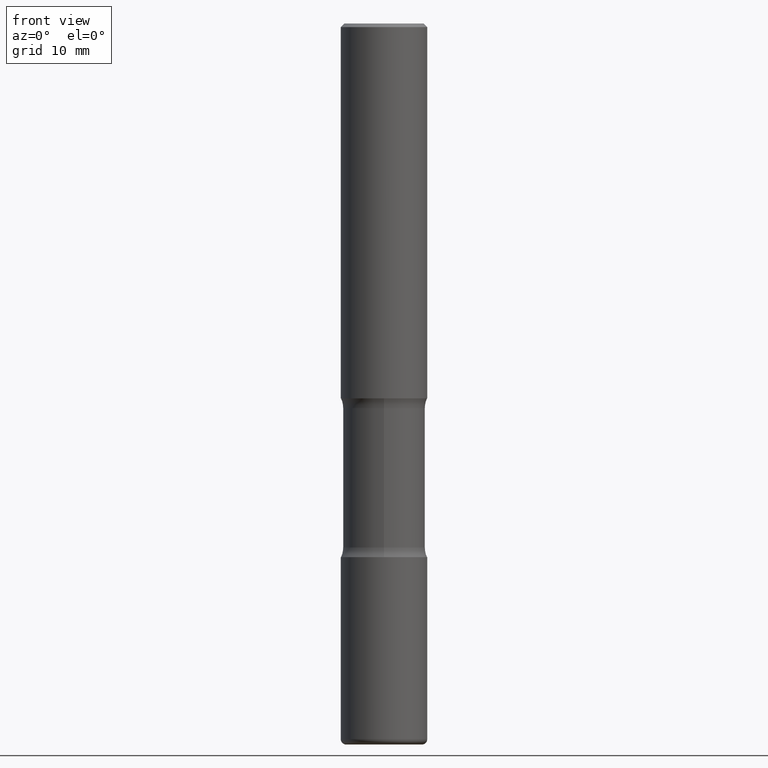
[diagram: clean part render]
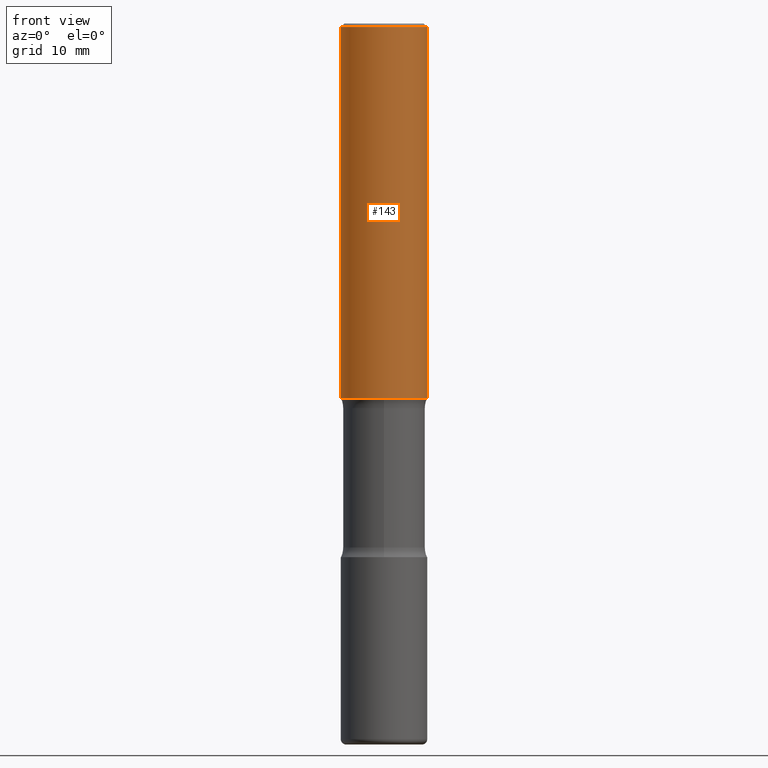
[diagram: same view with one face highlighted and labeled with its STEP entity id]
A machine part, front view. The second image highlights one B-rep face of the part: STEP entity #143.
In plain terms, the highlighted cylindrical surface (partial cylindrical patch) has radius 5.9995 mm, axis along (-0, 0, 1).
Its self-contained STEP definition (entity closure, byte-faithful):
#23 = CYLINDRICAL_SURFACE ( 'NONE', #133, 0.2361999999999999933 ) ;
#34 = DIRECTION ( 'NONE',  ( -2.445468806185136597E-29, 3.491481338843145583E-15, 1.000000000000000000 ) ) ;
#44 = EDGE_CURVE ( 'NONE', #64, #450, #71, .T. ) ;
#64 = VERTEX_POINT ( 'NONE', #393 ) ;
#71 = CIRCLE ( 'NONE', #401, 0.2362000000000001321 ) ;
#82 = ORIENTED_EDGE ( 'NONE', *, *, #44, .T. ) ;
#89 = CARTESIAN_POINT ( 'NONE',  ( -0.2361999999999999933, 1.678301941865356591E-15, -1.161852468318208757E-29 ) ) ;
#94 = DIRECTION ( 'NONE',  ( -2.445468806185136877E-29, 3.491481338843145188E-15, 1.000000000000000000 ) ) ;
#108 = EDGE_LOOP ( 'NONE', ( #496, #82, #249, #138 ) ) ;
#115 = CARTESIAN_POINT ( 'NONE',  ( 4.890937612370289799E-31, -6.982962677686315028E-17, -0.02000000000000006981 ) ) ;
#133 = AXIS2_PLACEMENT_3D ( 'NONE', #202, #341, #497 ) ;
#135 = LINE ( 'NONE', #484, #333 ) ;
#138 = ORIENTED_EDGE ( 'NONE', *, *, #166, .F. ) ;
#143 = ADVANCED_FACE ( 'NONE', ( #493 ), #23, .T. ) ;
#166 = EDGE_CURVE ( 'NONE', #345, #434, #406, .T. ) ;
#185 = VECTOR ( 'NONE', #94, 39.37007874015748143 ) ;
#193 = DIRECTION ( 'NONE',  ( 1.000000000000000000, -6.982962677686269077E-15, 0.000000000000000000 ) ) ;
#202 = CARTESIAN_POINT ( 'NONE',  ( 0.000000000000000000, 0.000000000000000000, 0.000000000000000000 ) ) ;
#231 = CARTESIAN_POINT ( 'NONE',  ( 0.2361999999999998823, -1.690279253850498179E-15, -0.02000000000000006981 ) ) ;
#249 = ORIENTED_EDGE ( 'NONE', *, *, #404, .T. ) ;
#282 = LINE ( 'NONE', #89, #185 ) ;
#301 = DIRECTION ( 'NONE',  ( 1.000000000000000000, -6.982962677686267499E-15, 0.000000000000000000 ) ) ;
#325 = DIRECTION ( 'NONE',  ( -2.445468806185136877E-29, 3.491481338843145188E-15, 1.000000000000000000 ) ) ;
#333 = VECTOR ( 'NONE', #325, 39.37007874015748143 ) ;
#340 = EDGE_CURVE ( 'NONE', #64, #345, #282, .T. ) ;
#341 = DIRECTION ( 'NONE',  ( -2.445468806185136597E-29, 3.491481338843145583E-15, 1.000000000000000000 ) ) ;
#345 = VERTEX_POINT ( 'NONE', #480 ) ;
#361 = AXIS2_PLACEMENT_3D ( 'NONE', #115, #34, #301 ) ;
#363 = CARTESIAN_POINT ( 'NONE',  ( 5.006363740022212241E-29, -7.147760596879688202E-15, -2.047200000000000131 ) ) ;
#393 = CARTESIAN_POINT ( 'NONE',  ( -0.2362000000000001598, -1.930493169962915017E-15, -2.047200000000000131 ) ) ;
#401 = AXIS2_PLACEMENT_3D ( 'NONE', #363, #517, #193 ) ;
#404 = EDGE_CURVE ( 'NONE', #450, #434, #135, .T. ) ;
#406 = CIRCLE ( 'NONE', #361, 0.2361999999999998823 ) ;
#434 = VERTEX_POINT ( 'NONE', #231 ) ;
#450 = VERTEX_POINT ( 'NONE', #532 ) ;
#480 = CARTESIAN_POINT ( 'NONE',  ( -0.2361999999999998823, 1.579546157692632438E-15, -0.02000000000000006981 ) ) ;
#484 = CARTESIAN_POINT ( 'NONE',  ( 0.2361999999999999933, -1.649375784469496131E-15, 1.151752954443000088E-29 ) ) ;
#493 = FACE_OUTER_BOUND ( 'NONE', #108, .T. ) ;
#496 = ORIENTED_EDGE ( 'NONE', *, *, #340, .F. ) ;
#497 = DIRECTION ( 'NONE',  ( 1.000000000000000000, -6.982962677686266711E-15, 4.876176775795936353E-29 ) ) ;
#517 = DIRECTION ( 'NONE',  ( -2.445468806185136597E-29, 3.491481338843145583E-15, 1.000000000000000000 ) ) ;
#532 = CARTESIAN_POINT ( 'NONE',  ( 0.2362000000000001321, -8.797136381349186305E-15, -2.047200000000000131 ) ) ;